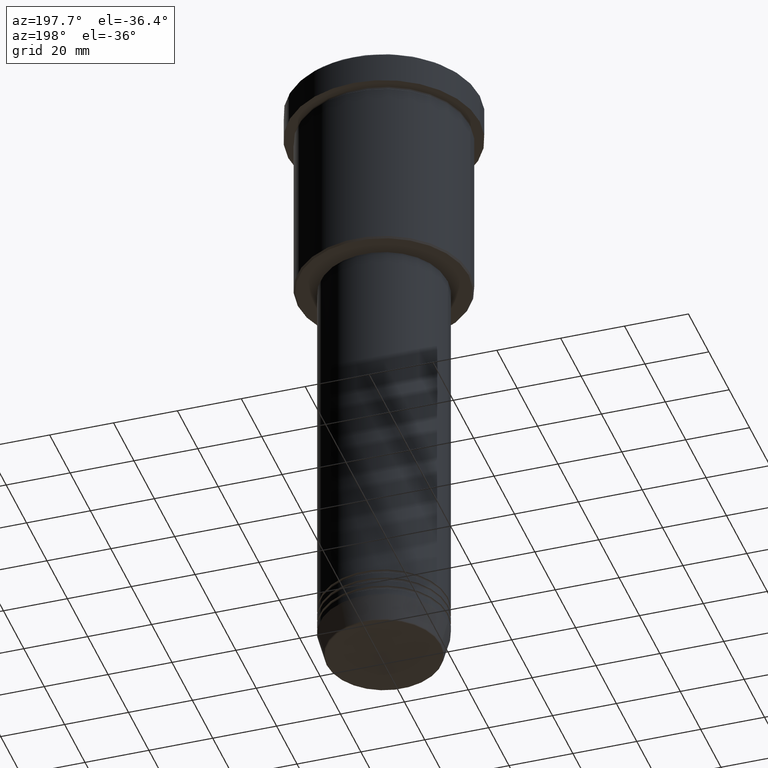
[diagram: clean part render]
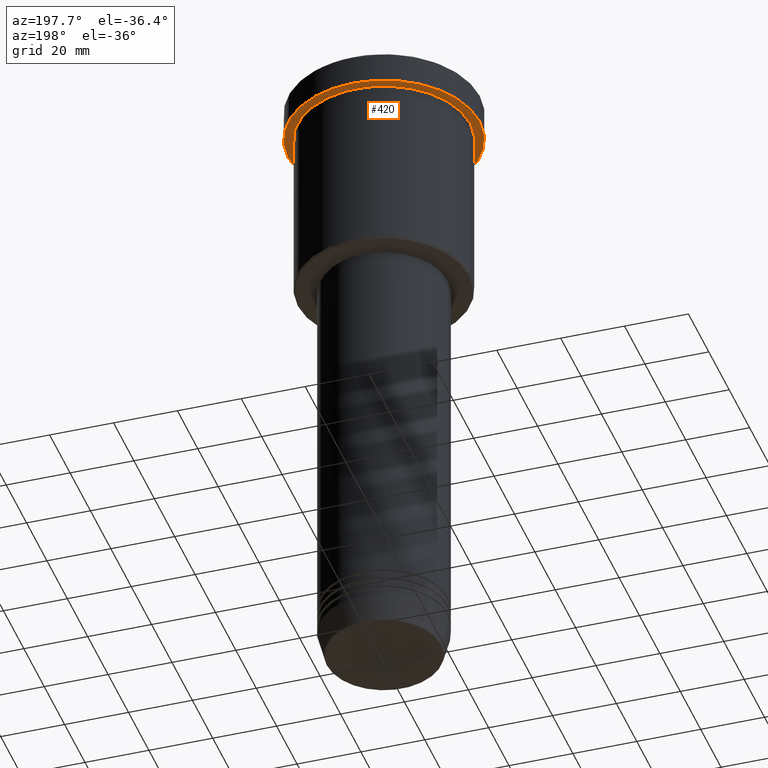
[diagram: same view with one face highlighted and labeled with its STEP entity id]
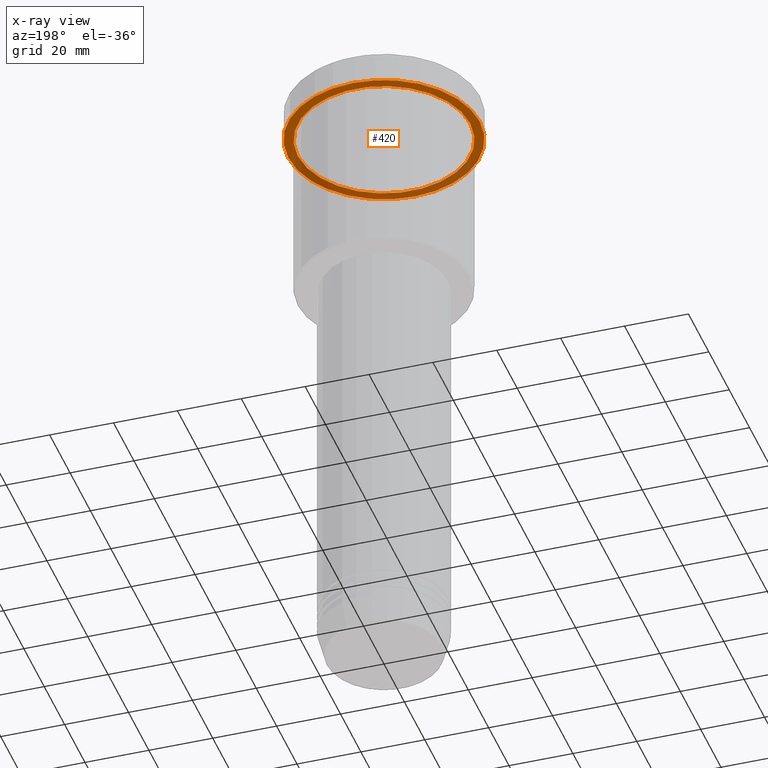
[diagram: x-ray of the same camera — body ghosted, the highlighted face saturated]
A machine part, auxiliary view. The second image highlights one B-rep face of the part: STEP entity #420.
The next image is the same camera in x-ray: the body ghosted, the highlighted face saturated — about 37% of this face is hidden behind the body in this view.
In plain terms, the highlighted planar face has unit normal (0, 0, -1).
Its self-contained STEP definition (entity closure, byte-faithful):
#14 = AXIS2_PLACEMENT_3D ( 'NONE', #515, #686, #72 ) ;
#72 = DIRECTION ( 'NONE',  ( -1.000000000000000000, 0.000000000000000000, 0.000000000000000000 ) ) ;
#158 = VERTEX_POINT ( 'NONE', #289 ) ;
#160 = FACE_BOUND ( 'NONE', #712, .T. ) ;
#262 = DIRECTION ( 'NONE',  ( -1.000000000000000000, 0.000000000000000000, -0.000000000000000000 ) ) ;
#289 = CARTESIAN_POINT ( 'NONE',  ( -30.00000000000000000, 3.673940397442059178E-15, -9.999999999999992895 ) ) ;
#319 = DIRECTION ( 'NONE',  ( 1.000000000000000000, 0.000000000000000000, 0.000000000000000000 ) ) ;
#347 = CARTESIAN_POINT ( 'NONE',  ( 0.000000000000000000, 30.00000000000000000, -9.999999999999992895 ) ) ;
#388 = CARTESIAN_POINT ( 'NONE',  ( 0.000000000000000000, 0.000000000000000000, -9.999999999999992895 ) ) ;
#403 = CARTESIAN_POINT ( 'NONE',  ( 0.000000000000000000, 0.000000000000000000, -9.999999999999992895 ) ) ;
#420 = ADVANCED_FACE ( 'NONE', ( #160, #873 ), #423, .T. ) ;
#423 = PLANE ( 'NONE',  #520 ) ;
#427 = AXIS2_PLACEMENT_3D ( 'NONE', #403, #1131, #319 ) ;
#478 = DIRECTION ( 'NONE',  ( -0.000000000000000000, -0.000000000000000000, 1.000000000000000000 ) ) ;
#506 = AXIS2_PLACEMENT_3D ( 'NONE', #622, #478, #751 ) ;
#507 = EDGE_CURVE ( 'NONE', #158, #866, #587, .T. ) ;
#515 = CARTESIAN_POINT ( 'NONE',  ( 0.000000000000000000, 0.000000000000000000, -9.999999999999992895 ) ) ;
#520 = AXIS2_PLACEMENT_3D ( 'NONE', #347, #778, #262 ) ;
#564 = DIRECTION ( 'NONE',  ( -0.000000000000000000, -0.000000000000000000, 1.000000000000000000 ) ) ;
#587 = CIRCLE ( 'NONE', #427, 30.00000000000000000 ) ;
#616 = ORIENTED_EDGE ( 'NONE', *, *, #507, .F. ) ;
#622 = CARTESIAN_POINT ( 'NONE',  ( 0.000000000000000000, 0.000000000000000000, -9.999999999999992895 ) ) ;
#626 = ORIENTED_EDGE ( 'NONE', *, *, #1134, .F. ) ;
#671 = EDGE_LOOP ( 'NONE', ( #626, #616 ) ) ;
#686 = DIRECTION ( 'NONE',  ( -0.000000000000000000, -0.000000000000000000, 1.000000000000000000 ) ) ;
#712 = EDGE_LOOP ( 'NONE', ( #1087, #764 ) ) ;
#751 = DIRECTION ( 'NONE',  ( 1.000000000000000000, 0.000000000000000000, 0.000000000000000000 ) ) ;
#764 = ORIENTED_EDGE ( 'NONE', *, *, #1000, .T. ) ;
#778 = DIRECTION ( 'NONE',  ( 0.000000000000000000, 0.000000000000000000, -1.000000000000000000 ) ) ;
#784 = CARTESIAN_POINT ( 'NONE',  ( 30.00000000000000000, 0.000000000000000000, -9.999999999999992895 ) ) ;
#791 = CARTESIAN_POINT ( 'NONE',  ( 27.00000000000000355, 3.306546357697854128E-15, -9.999999999999992895 ) ) ;
#833 = DIRECTION ( 'NONE',  ( -1.000000000000000000, 0.000000000000000000, 0.000000000000000000 ) ) ;
#845 = CIRCLE ( 'NONE', #506, 30.00000000000000000 ) ;
#846 = VERTEX_POINT ( 'NONE', #791 ) ;
#866 = VERTEX_POINT ( 'NONE', #784 ) ;
#873 = FACE_OUTER_BOUND ( 'NONE', #671, .T. ) ;
#890 = CARTESIAN_POINT ( 'NONE',  ( -27.00000000000000355, 0.000000000000000000, -9.999999999999992895 ) ) ;
#899 = VERTEX_POINT ( 'NONE', #890 ) ;
#971 = AXIS2_PLACEMENT_3D ( 'NONE', #388, #564, #833 ) ;
#1000 = EDGE_CURVE ( 'NONE', #846, #899, #1034, .T. ) ;
#1010 = EDGE_CURVE ( 'NONE', #899, #846, #1099, .T. ) ;
#1034 = CIRCLE ( 'NONE', #971, 27.00000000000000355 ) ;
#1087 = ORIENTED_EDGE ( 'NONE', *, *, #1010, .T. ) ;
#1099 = CIRCLE ( 'NONE', #14, 27.00000000000000355 ) ;
#1131 = DIRECTION ( 'NONE',  ( -0.000000000000000000, -0.000000000000000000, 1.000000000000000000 ) ) ;
#1134 = EDGE_CURVE ( 'NONE', #866, #158, #845, .T. ) ;